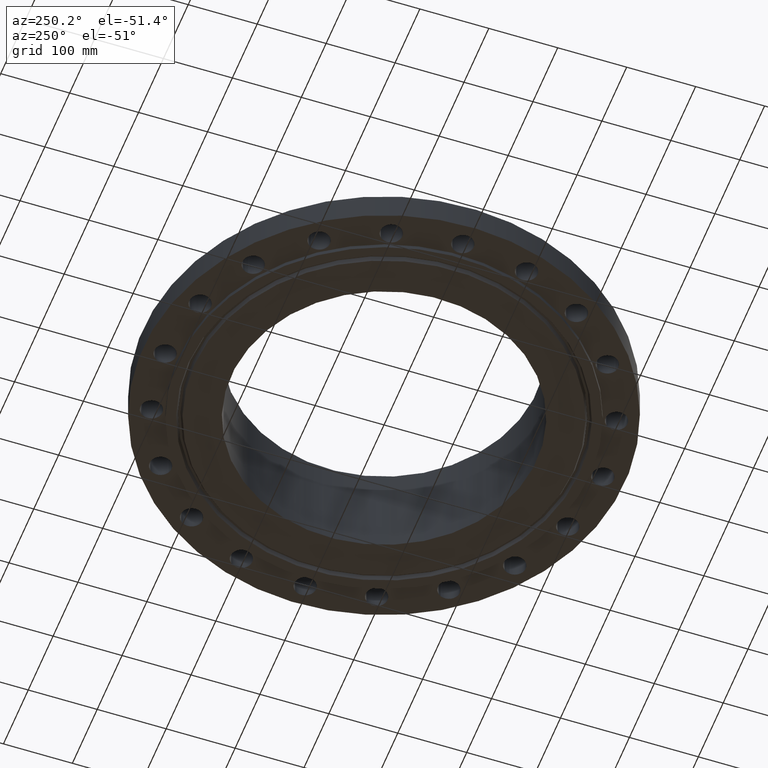
[diagram: clean part render]
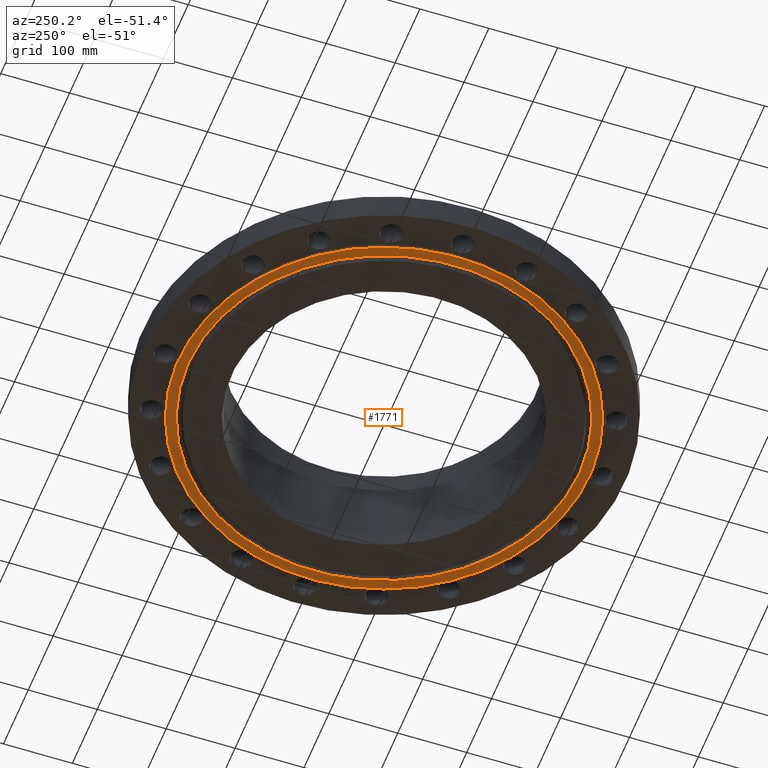
[diagram: same view with one face highlighted and labeled with its STEP entity id]
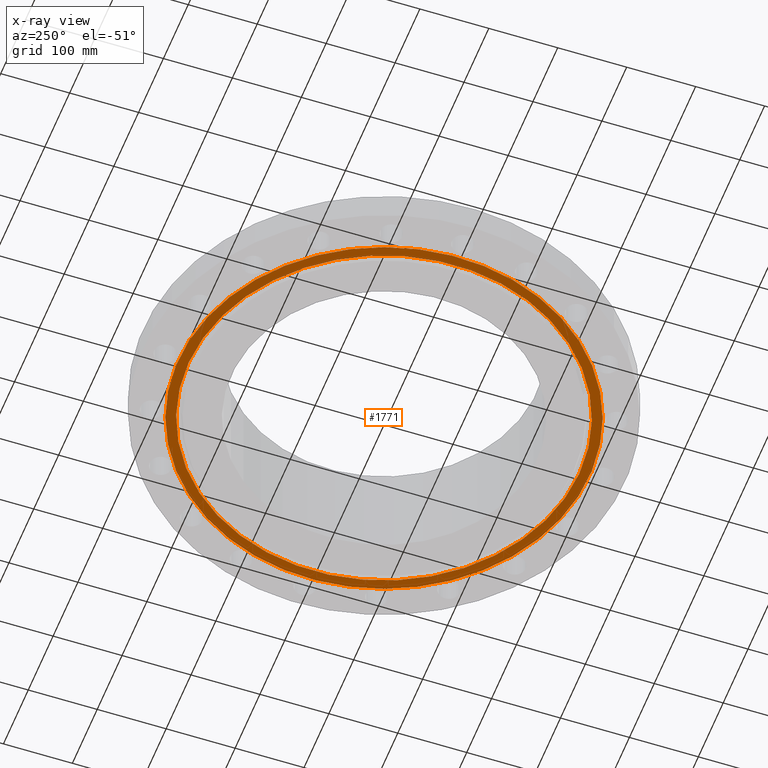
[diagram: x-ray of the same camera — body ghosted, the highlighted face saturated]
A machine part, auxiliary view. The second image highlights one B-rep face of the part: STEP entity #1771.
The next image is the same camera in x-ray: the body ghosted, the highlighted face saturated — about 0% of this face is hidden behind the body in this view.
In plain terms, the highlighted planar face has unit normal (0, 0, -1).
Its self-contained STEP definition (entity closure, byte-faithful):
#517=AXIS2_PLACEMENT_3D('Circle Axis2P3D',#515,#516,$) ;
#552=AXIS2_PLACEMENT_3D('Circle Axis2P3D',#550,#551,$) ;
#1747=AXIS2_PLACEMENT_3D('Plane Axis2P3D',#1744,#1745,#1746) ;
#1755=AXIS2_PLACEMENT_3D('Circle Axis2P3D',#1753,#1754,$) ;
#1764=AXIS2_PLACEMENT_3D('Circle Axis2P3D',#1762,#1763,$) ;
#515=CARTESIAN_POINT('Axis2P3D Location',(0.,0.,-0.250000000001)) ;
#519=CARTESIAN_POINT('Vertex',(-5.63325007862,-10.3115951023,-0.250000000001)) ;
#521=CARTESIAN_POINT('Vertex',(5.63325007862,10.3115951023,-0.250000000001)) ;
#550=CARTESIAN_POINT('Axis2P3D Location',(0.,0.,-0.250000000001)) ;
#1744=CARTESIAN_POINT('Axis2P3D Location',(0.,8.71900000003,-0.250000000001)) ;
#1753=CARTESIAN_POINT('Axis2P3D Location',(2.79741234551E-016,1.1189649382E-015,-0.250000000001)) ;
#1757=CARTESIAN_POINT('Vertex',(5.35608218912,-9.80424268366,-0.250000000001)) ;
#1759=CARTESIAN_POINT('Vertex',(-5.35608218912,9.80424268366,-0.250000000001)) ;
#1762=CARTESIAN_POINT('Axis2P3D Location',(0.,-1.1189649382E-015,-0.250000000001)) ;
#516=DIRECTION('Axis2P3D Direction',(0.,0.,-0.0393700787402)) ;
#551=DIRECTION('Axis2P3D Direction',(0.,0.,-0.0393700787402)) ;
#1745=DIRECTION('Axis2P3D Direction',(0.,0.,-0.0393700787402)) ;
#1746=DIRECTION('Axis2P3D XDirection',(0.0393700787402,0.,0.)) ;
#1754=DIRECTION('Axis2P3D Direction',(0.,0.,-0.0393700787402)) ;
#1763=DIRECTION('Axis2P3D Direction',(0.,0.,-0.0393700787402)) ;
#1750=ORIENTED_EDGE('',*,*,#523,.T.) ;
#1751=ORIENTED_EDGE('',*,*,#554,.T.) ;
#1768=ORIENTED_EDGE('',*,*,#1761,.F.) ;
#1769=ORIENTED_EDGE('',*,*,#1766,.F.) ;
#1770=FACE_BOUND('',#1767,.T.) ;
#1771=ADVANCED_FACE('PartBody',(#1752,#1770),#1748,.T.) ;
#518=CIRCLE('generated circle',#517,11.75) ;
#553=CIRCLE('generated circle',#552,11.75) ;
#1756=CIRCLE('generated circle',#1755,11.171875) ;
#1765=CIRCLE('generated circle',#1764,11.171875) ;
#523=EDGE_CURVE('',#520,#522,#518,.T.) ;
#554=EDGE_CURVE('',#522,#520,#553,.T.) ;
#1761=EDGE_CURVE('',#1758,#1760,#1756,.T.) ;
#1766=EDGE_CURVE('',#1760,#1758,#1765,.T.) ;
#1749=EDGE_LOOP('',(#1750,#1751)) ;
#1767=EDGE_LOOP('',(#1768,#1769)) ;
#1752=FACE_OUTER_BOUND('',#1749,.T.) ;
#1748=PLANE('',#1747) ;
#520=VERTEX_POINT('',#519) ;
#522=VERTEX_POINT('',#521) ;
#1758=VERTEX_POINT('',#1757) ;
#1760=VERTEX_POINT('',#1759) ;